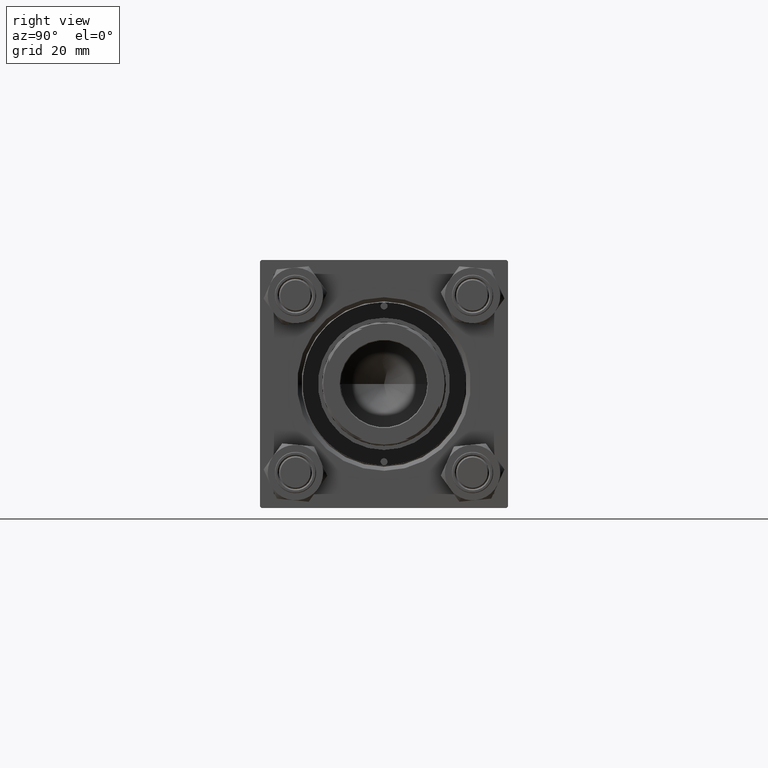
[diagram: clean part render]
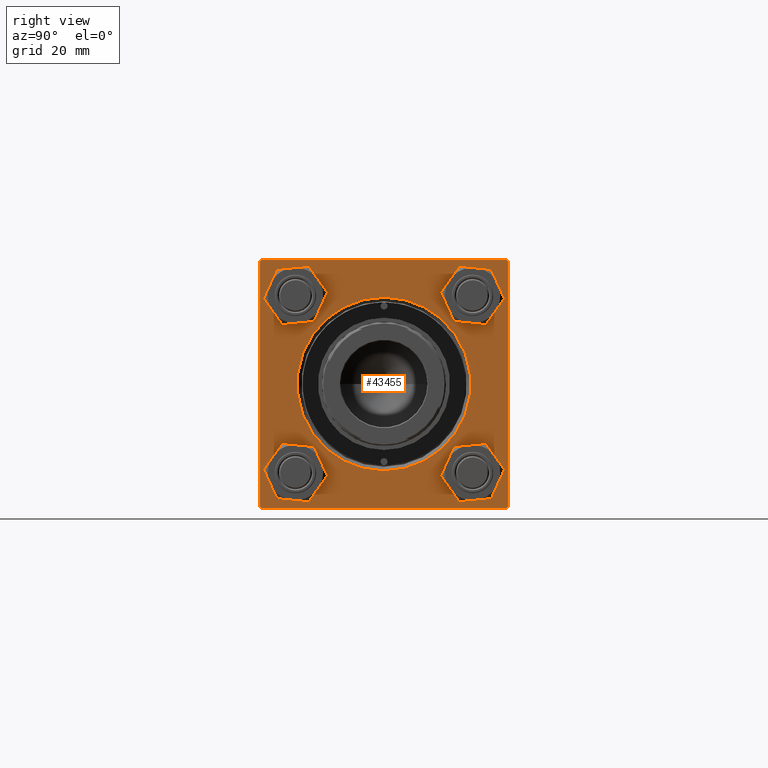
[diagram: same view with one face highlighted and labeled with its STEP entity id]
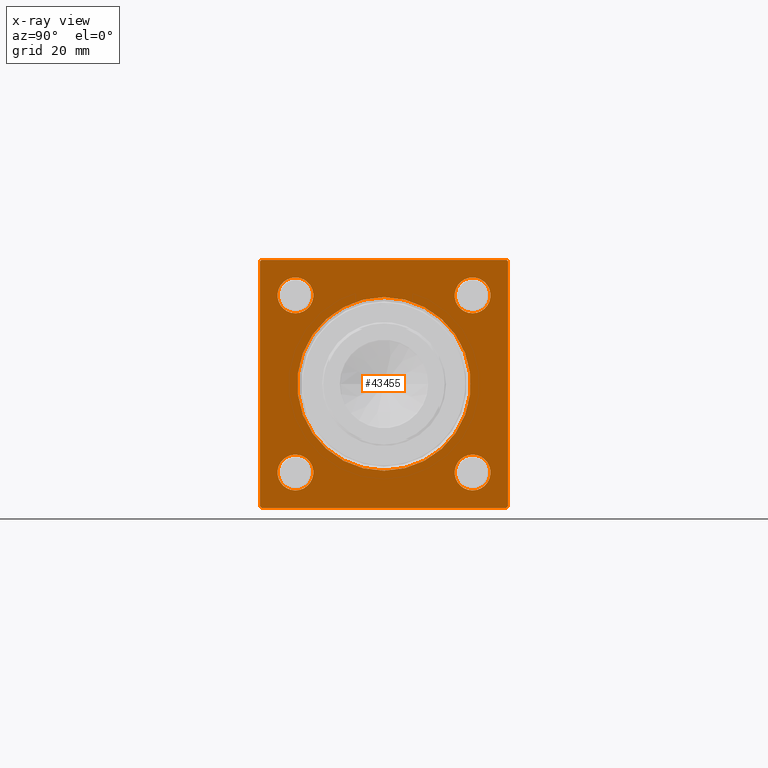
[diagram: x-ray of the same camera — body ghosted, the highlighted face saturated]
A machine part, right view. The second image highlights one B-rep face of the part: STEP entity #43455.
The next image is the same camera in x-ray: the body ghosted, the highlighted face saturated — about 0% of this face is hidden behind the body in this view.
In plain terms, the highlighted planar face has unit normal (-1, 0, 0).
Its self-contained STEP definition (entity closure, byte-faithful):
#141 = VECTOR ( 'NONE', #46059, 1000.000000000000000 ) ;
#488 = DIRECTION ( 'NONE',  ( 0.000000000000000000, 0.000000000000000000, 1.000000000000000000 ) ) ;
#584 = CIRCLE ( 'NONE', #36807, 6.500000000000061284 ) ;
#783 = CARTESIAN_POINT ( 'NONE',  ( 155.0000000000000000, -32.14999999999997726, 32.15000000000001279 ) ) ;
#960 = DIRECTION ( 'NONE',  ( 0.000000000000000000, 7.709882115452478166E-17, -1.000000000000000000 ) ) ;
#1499 = DIRECTION ( 'NONE',  ( 0.000000000000000000, 0.000000000000000000, 1.000000000000000000 ) ) ;
#1556 = CARTESIAN_POINT ( 'NONE',  ( 155.0000000000000000, 0.000000000000000000, 0.000000000000000000 ) ) ;
#2554 = VERTEX_POINT ( 'NONE', #12892 ) ;
#2659 = DIRECTION ( 'NONE',  ( -1.000000000000000000, -0.000000000000000000, -0.000000000000000000 ) ) ;
#3393 = DIRECTION ( 'NONE',  ( -1.000000000000000000, -0.000000000000000000, -0.000000000000000000 ) ) ;
#3574 = FACE_BOUND ( 'NONE', #18723, .T. ) ;
#3585 = CARTESIAN_POINT ( 'NONE',  ( 155.0000000000000000, 45.00000000000001421, 45.00000000000000000 ) ) ;
#3676 = ORIENTED_EDGE ( 'NONE', *, *, #28845, .T. ) ;
#3761 = DIRECTION ( 'NONE',  ( 0.000000000000000000, -1.000000000000000000, -1.541976423090495140E-16 ) ) ;
#3938 = CIRCLE ( 'NONE', #32114, 6.500000000000061284 ) ;
#4011 = EDGE_CURVE ( 'NONE', #39772, #42963, #46562, .T. ) ;
#4024 = DIRECTION ( 'NONE',  ( 0.000000000000000000, 0.7071067811865524577, -0.7071067811865426878 ) ) ;
#4629 = CARTESIAN_POINT ( 'NONE',  ( 155.0000000000000000, -45.00000000000000000, 44.49999999999995737 ) ) ;
#4756 = AXIS2_PLACEMENT_3D ( 'NONE', #36522, #43569, #5517 ) ;
#5517 = DIRECTION ( 'NONE',  ( 0.000000000000000000, 0.000000000000000000, 1.000000000000000000 ) ) ;
#5916 = EDGE_CURVE ( 'NONE', #38010, #44035, #15556, .T. ) ;
#5988 = VERTEX_POINT ( 'NONE', #46630 ) ;
#5992 = CIRCLE ( 'NONE', #42199, 6.500000000000061284 ) ;
#6118 = DIRECTION ( 'NONE',  ( -0.000000000000000000, 0.7071067811865474617, 0.7071067811865474617 ) ) ;
#6531 = ORIENTED_EDGE ( 'NONE', *, *, #12948, .T. ) ;
#7176 = CARTESIAN_POINT ( 'NONE',  ( 155.0000000000000000, 32.14999999999999147, 32.15000000000000568 ) ) ;
#7559 = CARTESIAN_POINT ( 'NONE',  ( 155.0000000000000000, 45.00000000000001421, 45.00000000000000000 ) ) ;
#7567 = LINE ( 'NONE', #19155, #45405 ) ;
#7865 = CIRCLE ( 'NONE', #15093, 31.50000000000000000 ) ;
#8714 = ORIENTED_EDGE ( 'NONE', *, *, #40825, .T. ) ;
#9061 = CARTESIAN_POINT ( 'NONE',  ( 155.0000000000000000, 32.14999999999999147, 32.15000000000000568 ) ) ;
#9275 = CARTESIAN_POINT ( 'NONE',  ( 155.0000000000000000, 45.00000000000001421, 44.49999999999997158 ) ) ;
#9293 = CARTESIAN_POINT ( 'NONE',  ( 155.0000000000000000, -45.00000000000000000, 44.99999999999998579 ) ) ;
#9486 = CARTESIAN_POINT ( 'NONE',  ( 155.0000000000000000, -44.49999999999990052, -45.00000000000000000 ) ) ;
#9641 = AXIS2_PLACEMENT_3D ( 'NONE', #42249, #42740, #38460 ) ;
#10115 = EDGE_CURVE ( 'NONE', #25894, #33747, #45933, .T. ) ;
#10713 = CARTESIAN_POINT ( 'NONE',  ( 155.0000000000000000, 32.14999999999999147, -32.15000000000000568 ) ) ;
#10812 = VERTEX_POINT ( 'NONE', #11009 ) ;
#10896 = DIRECTION ( 'NONE',  ( -1.000000000000000000, 0.000000000000000000, -0.000000000000000000 ) ) ;
#11009 = CARTESIAN_POINT ( 'NONE',  ( 155.0000000000000000, -32.14999999999997726, 38.65000000000007674 ) ) ;
#11709 = LINE ( 'NONE', #4629, #25080 ) ;
#11798 = VERTEX_POINT ( 'NONE', #30732 ) ;
#12272 = EDGE_CURVE ( 'NONE', #44035, #38010, #5992, .T. ) ;
#12586 = DIRECTION ( 'NONE',  ( -1.000000000000000000, -0.000000000000000000, -0.000000000000000000 ) ) ;
#12678 = EDGE_LOOP ( 'NONE', ( #8714, #16570 ) ) ;
#12892 = CARTESIAN_POINT ( 'NONE',  ( 155.0000000000000000, 3.857637417314162689E-15, 31.50000000000000000 ) ) ;
#12948 = EDGE_CURVE ( 'NONE', #5988, #42963, #7567, .T. ) ;
#13405 = CARTESIAN_POINT ( 'NONE',  ( 155.0000000000000000, 44.49999999999998579, 45.00000000000000000 ) ) ;
#13812 = EDGE_CURVE ( 'NONE', #32768, #24536, #49142, .T. ) ;
#14258 = DIRECTION ( 'NONE',  ( 0.000000000000000000, 0.000000000000000000, 1.000000000000000000 ) ) ;
#15093 = AXIS2_PLACEMENT_3D ( 'NONE', #1556, #20469, #16931 ) ;
#15167 = CARTESIAN_POINT ( 'NONE',  ( 155.0000000000000000, 32.14999999999999147, -38.65000000000006963 ) ) ;
#15223 = VERTEX_POINT ( 'NONE', #33901 ) ;
#15556 = CIRCLE ( 'NONE', #46136, 6.500000000000061284 ) ;
#15781 = CIRCLE ( 'NONE', #44756, 6.500000000000061284 ) ;
#16414 = DIRECTION ( 'NONE',  ( -1.000000000000000000, -0.000000000000000000, -0.000000000000000000 ) ) ;
#16570 = ORIENTED_EDGE ( 'NONE', *, *, #32368, .T. ) ;
#16931 = DIRECTION ( 'NONE',  ( 0.000000000000000000, 0.000000000000000000, 1.000000000000000000 ) ) ;
#17104 = LINE ( 'NONE', #9293, #37220 ) ;
#17455 = VERTEX_POINT ( 'NONE', #43395 ) ;
#18705 = FACE_OUTER_BOUND ( 'NONE', #48294, .T. ) ;
#18723 = EDGE_LOOP ( 'NONE', ( #30111, #25351 ) ) ;
#18953 = DIRECTION ( 'NONE',  ( -0.000000000000000000, 0.000000000000000000, 1.000000000000000000 ) ) ;
#19155 = CARTESIAN_POINT ( 'NONE',  ( 155.0000000000000000, -44.49999999999992895, -45.00000000000000000 ) ) ;
#19922 = VERTEX_POINT ( 'NONE', #25355 ) ;
#20081 = CARTESIAN_POINT ( 'NONE',  ( 155.0000000000000000, 32.14999999999999147, 25.64999999999994529 ) ) ;
#20469 = DIRECTION ( 'NONE',  ( -1.000000000000000000, -0.000000000000000000, -0.000000000000000000 ) ) ;
#20712 = DIRECTION ( 'NONE',  ( 0.000000000000000000, 0.000000000000000000, 1.000000000000000000 ) ) ;
#21767 = FACE_BOUND ( 'NONE', #12678, .T. ) ;
#22706 = ORIENTED_EDGE ( 'NONE', *, *, #34458, .T. ) ;
#24536 = VERTEX_POINT ( 'NONE', #27014 ) ;
#24568 = CARTESIAN_POINT ( 'NONE',  ( 155.0000000000000000, 45.00000000000001421, -45.00000000000000000 ) ) ;
#25045 = AXIS2_PLACEMENT_3D ( 'NONE', #26034, #10896, #18953 ) ;
#25080 = VECTOR ( 'NONE', #34896, 1000.000000000000114 ) ;
#25197 = CARTESIAN_POINT ( 'NONE',  ( 155.0000000000000000, -45.00000000000000000, 44.49999999999995737 ) ) ;
#25217 = ORIENTED_EDGE ( 'NONE', *, *, #4011, .F. ) ;
#25292 = CARTESIAN_POINT ( 'NONE',  ( 155.0000000000000000, 45.00000000000001421, -44.50000000000000000 ) ) ;
#25323 = CARTESIAN_POINT ( 'NONE',  ( 155.0000000000000000, 32.14999999999999147, 38.65000000000007674 ) ) ;
#25351 = ORIENTED_EDGE ( 'NONE', *, *, #32931, .T. ) ;
#25355 = CARTESIAN_POINT ( 'NONE',  ( 155.0000000000000000, 0.000000000000000000, -31.50000000000000000 ) ) ;
#25767 = EDGE_LOOP ( 'NONE', ( #37823, #45634 ) ) ;
#25894 = VERTEX_POINT ( 'NONE', #9275 ) ;
#26034 = CARTESIAN_POINT ( 'NONE',  ( 155.0000000000000000, 0.000000000000000000, 0.000000000000000000 ) ) ;
#26845 = DIRECTION ( 'NONE',  ( -1.000000000000000000, -0.000000000000000000, -0.000000000000000000 ) ) ;
#27014 = CARTESIAN_POINT ( 'NONE',  ( 155.0000000000000000, -44.49999999999994316, 44.99999999999998579 ) ) ;
#27236 = VECTOR ( 'NONE', #30876, 1000.000000000000114 ) ;
#27340 = DIRECTION ( 'NONE',  ( 0.000000000000000000, 0.000000000000000000, 1.000000000000000000 ) ) ;
#27587 = DIRECTION ( 'NONE',  ( 0.000000000000000000, 0.000000000000000000, 1.000000000000000000 ) ) ;
#27716 = DIRECTION ( 'NONE',  ( -1.000000000000000000, -0.000000000000000000, -0.000000000000000000 ) ) ;
#28562 = VECTOR ( 'NONE', #3761, 1000.000000000000000 ) ;
#28845 = EDGE_CURVE ( 'NONE', #35792, #11798, #15781, .T. ) ;
#28893 = CARTESIAN_POINT ( 'NONE',  ( 155.0000000000000000, -32.14999999999997726, -25.64999999999994884 ) ) ;
#29249 = ORIENTED_EDGE ( 'NONE', *, *, #10115, .F. ) ;
#29685 = EDGE_LOOP ( 'NONE', ( #34605, #37817 ) ) ;
#30111 = ORIENTED_EDGE ( 'NONE', *, *, #32534, .T. ) ;
#30732 = CARTESIAN_POINT ( 'NONE',  ( 155.0000000000000000, -32.14999999999997726, -38.65000000000007674 ) ) ;
#30876 = DIRECTION ( 'NONE',  ( 0.000000000000000000, -0.7071067811865474617, 0.7071067811865474617 ) ) ;
#31117 = LINE ( 'NONE', #49528, #27236 ) ;
#31304 = DIRECTION ( 'NONE',  ( 0.000000000000000000, 0.000000000000000000, -1.000000000000000000 ) ) ;
#32114 = AXIS2_PLACEMENT_3D ( 'NONE', #40238, #2659, #33408 ) ;
#32200 = ORIENTED_EDGE ( 'NONE', *, *, #44315, .T. ) ;
#32328 = VECTOR ( 'NONE', #6118, 1000.000000000000114 ) ;
#32368 = EDGE_CURVE ( 'NONE', #15223, #40477, #584, .T. ) ;
#32534 = EDGE_CURVE ( 'NONE', #19922, #2554, #38436, .T. ) ;
#32637 = EDGE_LOOP ( 'NONE', ( #41411, #3676 ) ) ;
#32768 = VERTEX_POINT ( 'NONE', #13405 ) ;
#32931 = EDGE_CURVE ( 'NONE', #2554, #19922, #7865, .T. ) ;
#33080 = LINE ( 'NONE', #25292, #32328 ) ;
#33408 = DIRECTION ( 'NONE',  ( 0.000000000000000000, 0.000000000000000000, 1.000000000000000000 ) ) ;
#33747 = VERTEX_POINT ( 'NONE', #49773 ) ;
#33749 = ORIENTED_EDGE ( 'NONE', *, *, #45831, .T. ) ;
#33756 = CIRCLE ( 'NONE', #9641, 6.500000000000061284 ) ;
#33901 = CARTESIAN_POINT ( 'NONE',  ( 155.0000000000000000, 32.14999999999999147, -25.64999999999994529 ) ) ;
#33975 = VERTEX_POINT ( 'NONE', #25197 ) ;
#34137 = DIRECTION ( 'NONE',  ( -1.000000000000000000, -0.000000000000000000, -0.000000000000000000 ) ) ;
#34458 = EDGE_CURVE ( 'NONE', #25894, #32768, #31117, .T. ) ;
#34605 = ORIENTED_EDGE ( 'NONE', *, *, #12272, .T. ) ;
#34896 = DIRECTION ( 'NONE',  ( -0.000000000000000000, -0.7071067811865474617, -0.7071067811865474617 ) ) ;
#35135 = CARTESIAN_POINT ( 'NONE',  ( 155.0000000000000000, 0.000000000000000000, 0.000000000000000000 ) ) ;
#35341 = CIRCLE ( 'NONE', #4756, 6.500000000000061284 ) ;
#35792 = VERTEX_POINT ( 'NONE', #28893 ) ;
#36411 = EDGE_CURVE ( 'NONE', #11798, #35792, #35341, .T. ) ;
#36522 = CARTESIAN_POINT ( 'NONE',  ( 155.0000000000000000, -32.14999999999997726, -32.15000000000001279 ) ) ;
#36807 = AXIS2_PLACEMENT_3D ( 'NONE', #10713, #3393, #14258 ) ;
#36864 = EDGE_CURVE ( 'NONE', #17455, #10812, #3938, .T. ) ;
#37034 = ORIENTED_EDGE ( 'NONE', *, *, #46853, .T. ) ;
#37220 = VECTOR ( 'NONE', #960, 1000.000000000000000 ) ;
#37817 = ORIENTED_EDGE ( 'NONE', *, *, #5916, .T. ) ;
#37823 = ORIENTED_EDGE ( 'NONE', *, *, #36864, .T. ) ;
#38010 = VERTEX_POINT ( 'NONE', #25323 ) ;
#38103 = FACE_BOUND ( 'NONE', #29685, .T. ) ;
#38436 = CIRCLE ( 'NONE', #48145, 31.50000000000000000 ) ;
#38460 = DIRECTION ( 'NONE',  ( 0.000000000000000000, 0.000000000000000000, 1.000000000000000000 ) ) ;
#38613 = CIRCLE ( 'NONE', #40253, 6.500000000000061284 ) ;
#39772 = VERTEX_POINT ( 'NONE', #44561 ) ;
#40238 = CARTESIAN_POINT ( 'NONE',  ( 155.0000000000000000, -32.14999999999997726, 32.15000000000001279 ) ) ;
#40253 = AXIS2_PLACEMENT_3D ( 'NONE', #783, #16414, #20712 ) ;
#40477 = VERTEX_POINT ( 'NONE', #15167 ) ;
#40825 = EDGE_CURVE ( 'NONE', #40477, #15223, #33756, .T. ) ;
#41389 = FACE_BOUND ( 'NONE', #32637, .T. ) ;
#41411 = ORIENTED_EDGE ( 'NONE', *, *, #36411, .T. ) ;
#41549 = EDGE_CURVE ( 'NONE', #10812, #17455, #38613, .T. ) ;
#41633 = ORIENTED_EDGE ( 'NONE', *, *, #13812, .T. ) ;
#42199 = AXIS2_PLACEMENT_3D ( 'NONE', #7176, #34137, #27340 ) ;
#42249 = CARTESIAN_POINT ( 'NONE',  ( 155.0000000000000000, 32.14999999999999147, -32.15000000000000568 ) ) ;
#42740 = DIRECTION ( 'NONE',  ( -1.000000000000000000, -0.000000000000000000, -0.000000000000000000 ) ) ;
#42884 = VECTOR ( 'NONE', #31304, 1000.000000000000000 ) ;
#42963 = VERTEX_POINT ( 'NONE', #9486 ) ;
#43330 = CARTESIAN_POINT ( 'NONE',  ( 155.0000000000000000, -32.14999999999997726, -32.15000000000001279 ) ) ;
#43395 = CARTESIAN_POINT ( 'NONE',  ( 155.0000000000000000, -32.14999999999997726, 25.64999999999994884 ) ) ;
#43455 = ADVANCED_FACE ( 'NONE', ( #41389, #21767, #38103, #45426, #3574, #18705 ), #44692, .F. ) ;
#43569 = DIRECTION ( 'NONE',  ( -1.000000000000000000, -0.000000000000000000, -0.000000000000000000 ) ) ;
#44035 = VERTEX_POINT ( 'NONE', #20081 ) ;
#44315 = EDGE_CURVE ( 'NONE', #24536, #33975, #11709, .T. ) ;
#44561 = CARTESIAN_POINT ( 'NONE',  ( 155.0000000000000000, 44.50000000000001421, -45.00000000000000000 ) ) ;
#44692 = PLANE ( 'NONE',  #25045 ) ;
#44756 = AXIS2_PLACEMENT_3D ( 'NONE', #43330, #27716, #1499 ) ;
#45405 = VECTOR ( 'NONE', #4024, 1000.000000000000000 ) ;
#45426 = FACE_BOUND ( 'NONE', #25767, .T. ) ;
#45634 = ORIENTED_EDGE ( 'NONE', *, *, #41549, .T. ) ;
#45831 = EDGE_CURVE ( 'NONE', #39772, #33747, #33080, .T. ) ;
#45933 = LINE ( 'NONE', #3585, #42884 ) ;
#46059 = DIRECTION ( 'NONE',  ( 0.000000000000000000, -1.000000000000000000, 0.000000000000000000 ) ) ;
#46136 = AXIS2_PLACEMENT_3D ( 'NONE', #9061, #12586, #488 ) ;
#46562 = LINE ( 'NONE', #24568, #141 ) ;
#46630 = CARTESIAN_POINT ( 'NONE',  ( 155.0000000000000000, -44.99999999999999289, -44.49999999999991473 ) ) ;
#46853 = EDGE_CURVE ( 'NONE', #33975, #5988, #17104, .T. ) ;
#48145 = AXIS2_PLACEMENT_3D ( 'NONE', #35135, #26845, #27587 ) ;
#48294 = EDGE_LOOP ( 'NONE', ( #37034, #6531, #25217, #33749, #29249, #22706, #41633, #32200 ) ) ;
#49142 = LINE ( 'NONE', #7559, #28562 ) ;
#49528 = CARTESIAN_POINT ( 'NONE',  ( 155.0000000000000000, 44.49999999999998579, 45.00000000000000000 ) ) ;
#49773 = CARTESIAN_POINT ( 'NONE',  ( 155.0000000000000000, 45.00000000000001421, -44.49999999999997158 ) ) ;